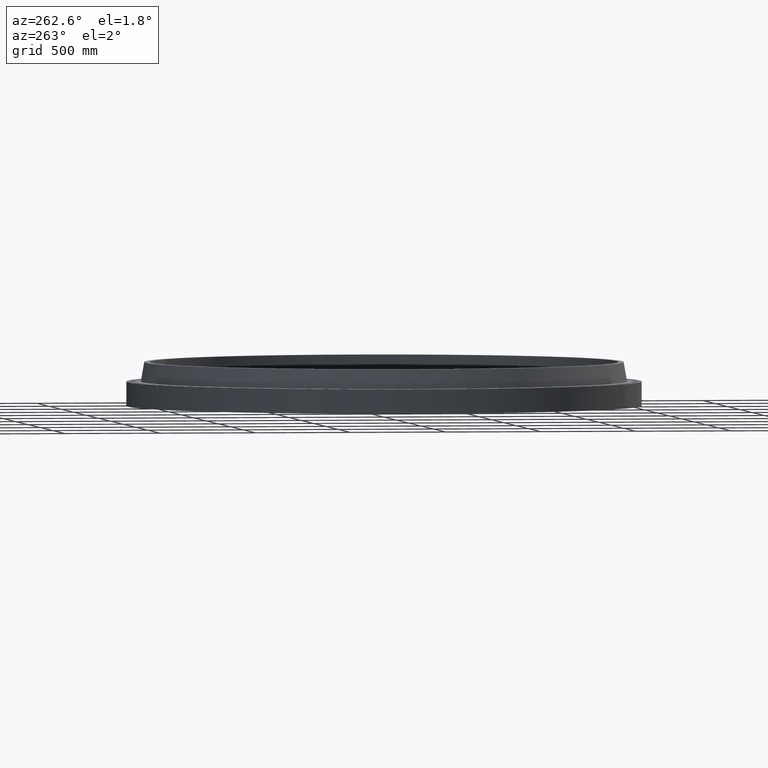
[diagram: clean part render]
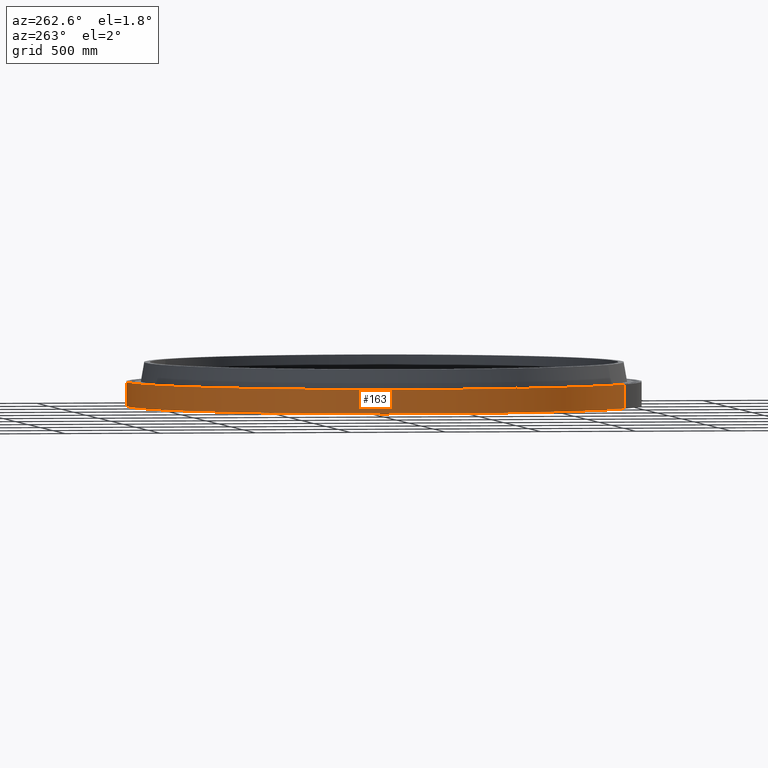
[diagram: same view with one face highlighted and labeled with its STEP entity id]
A machine part, auxiliary view. The second image highlights one B-rep face of the part: STEP entity #163.
In plain terms, the highlighted cylindrical surface (partial cylindrical patch) has radius 1346.2 mm, axis along (0, 0, -1).
Its self-contained STEP definition (entity closure, byte-faithful):
#127=AXIS2_PLACEMENT_3D('Cylinder Axis2P3D',#124,#125,#126) ;
#131=AXIS2_PLACEMENT_3D('Circle Axis2P3D',#129,#130,$) ;
#147=AXIS2_PLACEMENT_3D('Circle Axis2P3D',#145,#146,$) ;
#124=CARTESIAN_POINT('Axis2P3D Location',(0.,0.,4.46875000002)) ;
#129=CARTESIAN_POINT('Axis2P3D Location',(0.,0.,6.71378962923E-015)) ;
#133=CARTESIAN_POINT('Vertex',(-25.4095535461,-46.5118757804,6.71378962923E-015)) ;
#135=CARTESIAN_POINT('Vertex',(25.4095535461,46.5118757804,6.71378962923E-015)) ;
#138=CARTESIAN_POINT('Line Origine',(-25.4095535461,-46.5118757804,2.50000000001)) ;
#142=CARTESIAN_POINT('Vertex',(-25.4095535461,-46.5118757804,5.00000000002)) ;
#145=CARTESIAN_POINT('Axis2P3D Location',(0.,0.,5.00000000002)) ;
#149=CARTESIAN_POINT('Vertex',(25.4095535461,46.5118757804,5.00000000002)) ;
#152=CARTESIAN_POINT('Line Origine',(25.4095535461,46.5118757804,2.50000000001)) ;
#125=DIRECTION('Axis2P3D Direction',(0.,0.,-0.0393700787402)) ;
#126=DIRECTION('Axis2P3D XDirection',(0.0188750212049,0.0345504945626,0.)) ;
#130=DIRECTION('Axis2P3D Direction',(0.,0.,-0.0393700787402)) ;
#139=DIRECTION('Vector Direction',(0.,0.,-0.0393700787402)) ;
#146=DIRECTION('Axis2P3D Direction',(0.,0.,-0.0393700787402)) ;
#153=DIRECTION('Vector Direction',(0.,0.,-0.0393700787402)) ;
#140=VECTOR('Line Direction',#139,0.0393700787402) ;
#154=VECTOR('Line Direction',#153,0.0393700787402) ;
#158=ORIENTED_EDGE('',*,*,#137,.F.) ;
#159=ORIENTED_EDGE('',*,*,#144,.T.) ;
#160=ORIENTED_EDGE('',*,*,#151,.T.) ;
#161=ORIENTED_EDGE('',*,*,#156,.F.) ;
#163=ADVANCED_FACE('PartBody',(#162),#128,.T.) ;
#132=CIRCLE('generated circle',#131,53.0000000002) ;
#148=CIRCLE('generated circle',#147,53.0000000002) ;
#128=CYLINDRICAL_SURFACE('generated cylinder',#127,53.0000000002) ;
#137=EDGE_CURVE('',#134,#136,#132,.T.) ;
#144=EDGE_CURVE('',#134,#143,#141,.F.) ;
#151=EDGE_CURVE('',#143,#150,#148,.T.) ;
#156=EDGE_CURVE('',#136,#150,#155,.F.) ;
#157=EDGE_LOOP('',(#158,#159,#160,#161)) ;
#162=FACE_OUTER_BOUND('',#157,.T.) ;
#141=LINE('Line',#138,#140) ;
#155=LINE('Line',#152,#154) ;
#134=VERTEX_POINT('',#133) ;
#136=VERTEX_POINT('',#135) ;
#143=VERTEX_POINT('',#142) ;
#150=VERTEX_POINT('',#149) ;